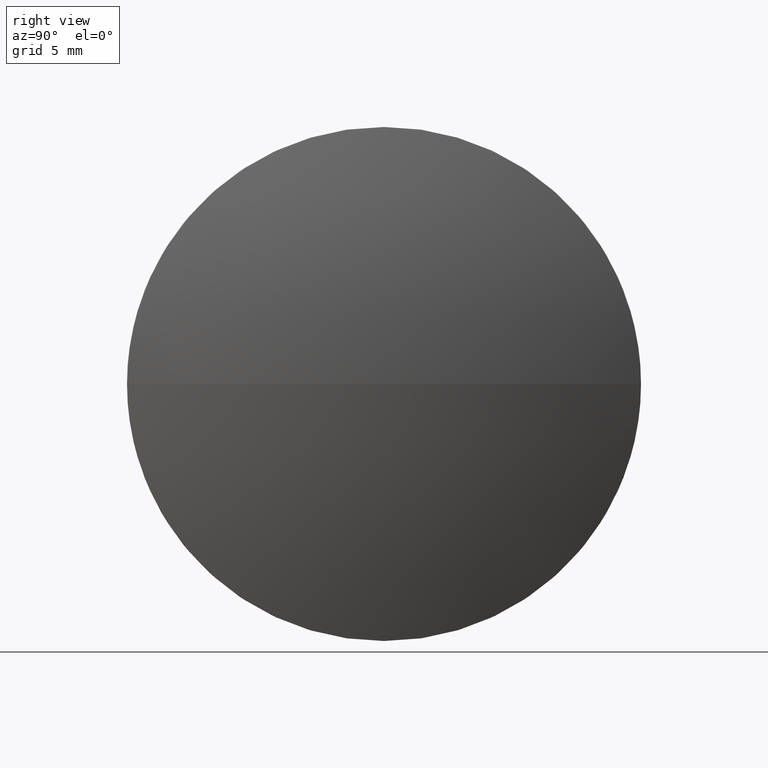
[diagram: clean part render]
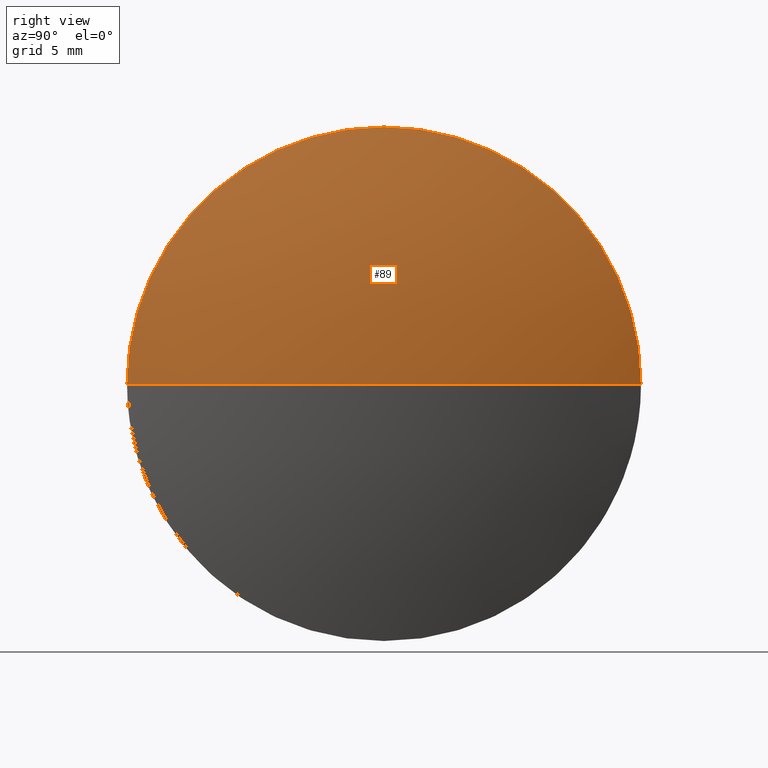
[diagram: same view with one face highlighted and labeled with its STEP entity id]
A machine part, right view. The second image highlights one B-rep face of the part: STEP entity #89.
In plain terms, the highlighted spherical surface has radius 41.2406 mm.
Its self-contained STEP definition (entity closure, byte-faithful):
#4 = AXIS2_PLACEMENT_3D ( 'NONE', #119, #23, #65 ) ;
#8 = DIRECTION ( 'NONE',  ( 0.0000000000000000000, 0.0000000000000000000, 1.000000000000000000 ) ) ;
#16 = CIRCLE ( 'NONE', #99, 12.49999999999998400 ) ;
#23 = DIRECTION ( 'NONE',  ( 0.0000000000000000000, 1.224646799147353200E-016, -1.000000000000000000 ) ) ;
#26 = CARTESIAN_POINT ( 'NONE',  ( 695.8525718572777800, 125.5543078984230900, 0.0000000000000000000 ) ) ;
#27 = CARTESIAN_POINT ( 'NONE',  ( 693.9125718572777300, 125.5543078984230900, 12.49999999999998400 ) ) ;
#28 = VERTEX_POINT ( 'NONE', #117 ) ;
#37 = CARTESIAN_POINT ( 'NONE',  ( 654.6119533005767200, 125.5543078984230900, 0.0000000000000000000 ) ) ;
#39 = CARTESIAN_POINT ( 'NONE',  ( 654.6119533005767200, 125.5543078984230900, 0.0000000000000000000 ) ) ;
#47 = AXIS2_PLACEMENT_3D ( 'NONE', #167, #152, #52 ) ;
#52 = DIRECTION ( 'NONE',  ( 0.0000000000000000000, 0.0000000000000000000, 1.000000000000000000 ) ) ;
#59 = EDGE_CURVE ( 'NONE', #178, #101, #124, .T. ) ;
#61 = EDGE_CURVE ( 'NONE', #178, #28, #115, .T. ) ;
#65 = DIRECTION ( 'NONE',  ( 0.0000000000000000000, 1.000000000000000000, 1.224646799147353200E-016 ) ) ;
#70 = FACE_OUTER_BOUND ( 'NONE', #113, .T. ) ;
#75 = EDGE_CURVE ( 'NONE', #112, #101, #111, .T. ) ;
#86 = ORIENTED_EDGE ( 'NONE', *, *, #61, .F. ) ;
#88 = ORIENTED_EDGE ( 'NONE', *, *, #156, .F. ) ;
#89 = ADVANCED_FACE ( 'NONE', ( #70 ), #185, .T. ) ;
#97 = DIRECTION ( 'NONE',  ( -0.0000000000000000000, 0.0000000000000000000, -1.000000000000000000 ) ) ;
#99 = AXIS2_PLACEMENT_3D ( 'NONE', #137, #154, #8 ) ;
#101 = VERTEX_POINT ( 'NONE', #170 ) ;
#104 = DIRECTION ( 'NONE',  ( -0.0000000000000000000, 0.0000000000000000000, 1.000000000000000000 ) ) ;
#111 = CIRCLE ( 'NONE', #47, 12.49999999999998400 ) ;
#112 = VERTEX_POINT ( 'NONE', #27 ) ;
#113 = EDGE_LOOP ( 'NONE', ( #86, #120, #136, #88 ) ) ;
#115 = CIRCLE ( 'NONE', #4, 41.24061855670099400 ) ;
#117 = CARTESIAN_POINT ( 'NONE',  ( 693.9125718572777300, 113.0543078984230600, -1.530808498934194300E-015 ) ) ;
#119 = CARTESIAN_POINT ( 'NONE',  ( 654.6119533005767200, 125.5543078984230900, 0.0000000000000000000 ) ) ;
#120 = ORIENTED_EDGE ( 'NONE', *, *, #59, .T. ) ;
#122 = AXIS2_PLACEMENT_3D ( 'NONE', #37, #104, #174 ) ;
#124 = CIRCLE ( 'NONE', #122, 41.24061855670102300 ) ;
#134 = DIRECTION ( 'NONE',  ( 0.0000000000000000000, 1.000000000000000000, 0.0000000000000000000 ) ) ;
#136 = ORIENTED_EDGE ( 'NONE', *, *, #75, .F. ) ;
#137 = CARTESIAN_POINT ( 'NONE',  ( 693.9125718572777300, 125.5543078984230900, 0.0000000000000000000 ) ) ;
#152 = DIRECTION ( 'NONE',  ( -1.000000000000000000, -0.0000000000000000000, -0.0000000000000000000 ) ) ;
#154 = DIRECTION ( 'NONE',  ( -1.000000000000000000, -0.0000000000000000000, -0.0000000000000000000 ) ) ;
#156 = EDGE_CURVE ( 'NONE', #28, #112, #16, .T. ) ;
#167 = CARTESIAN_POINT ( 'NONE',  ( 693.9125718572777300, 125.5543078984230900, 0.0000000000000000000 ) ) ;
#170 = CARTESIAN_POINT ( 'NONE',  ( 693.9125718572777300, 138.0543078984231000, 0.0000000000000000000 ) ) ;
#174 = DIRECTION ( 'NONE',  ( 1.000000000000000000, 0.0000000000000000000, 0.0000000000000000000 ) ) ;
#178 = VERTEX_POINT ( 'NONE', #26 ) ;
#185 = SPHERICAL_SURFACE ( 'NONE', #186, 41.24061855670099400 ) ;
#186 = AXIS2_PLACEMENT_3D ( 'NONE', #39, #97, #134 ) ;